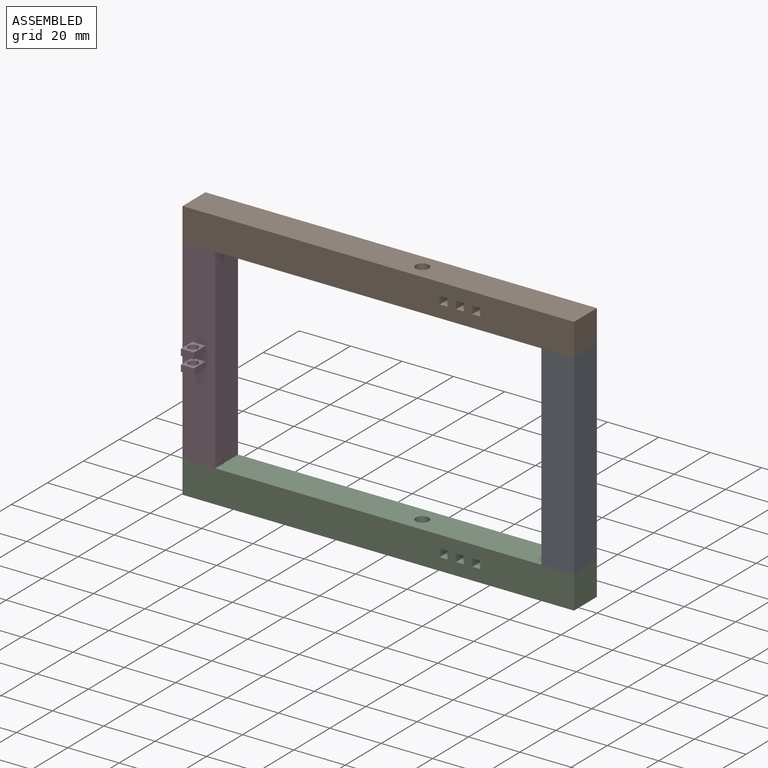
[diagram: assembled view]
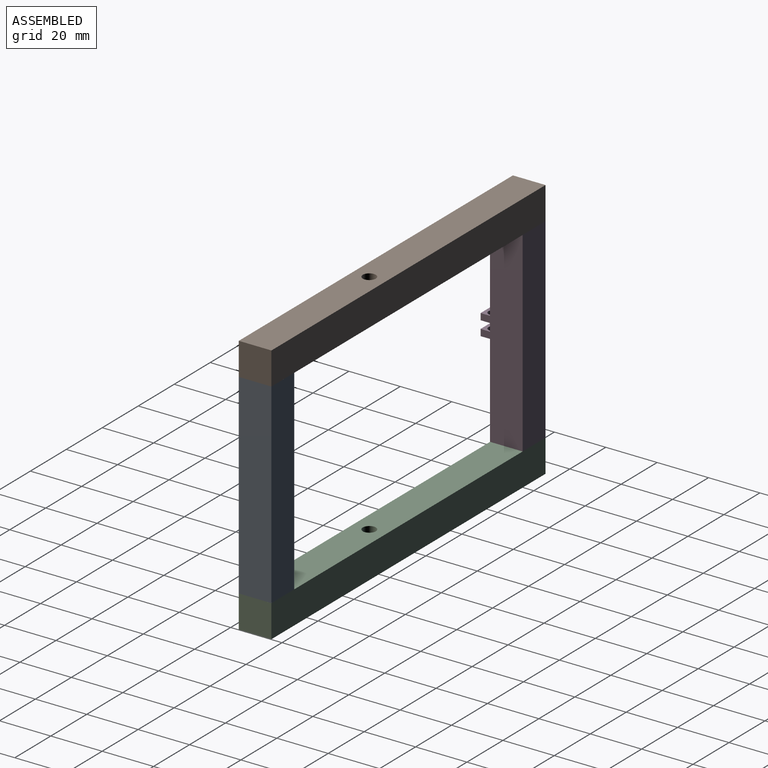
[diagram: assembled view, second angle]
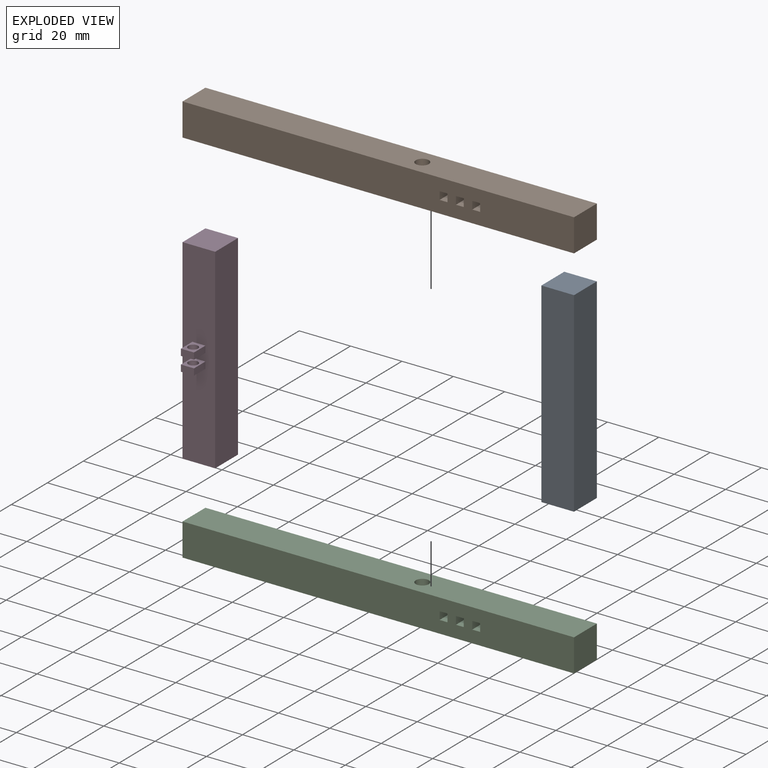
[diagram: exploded view]
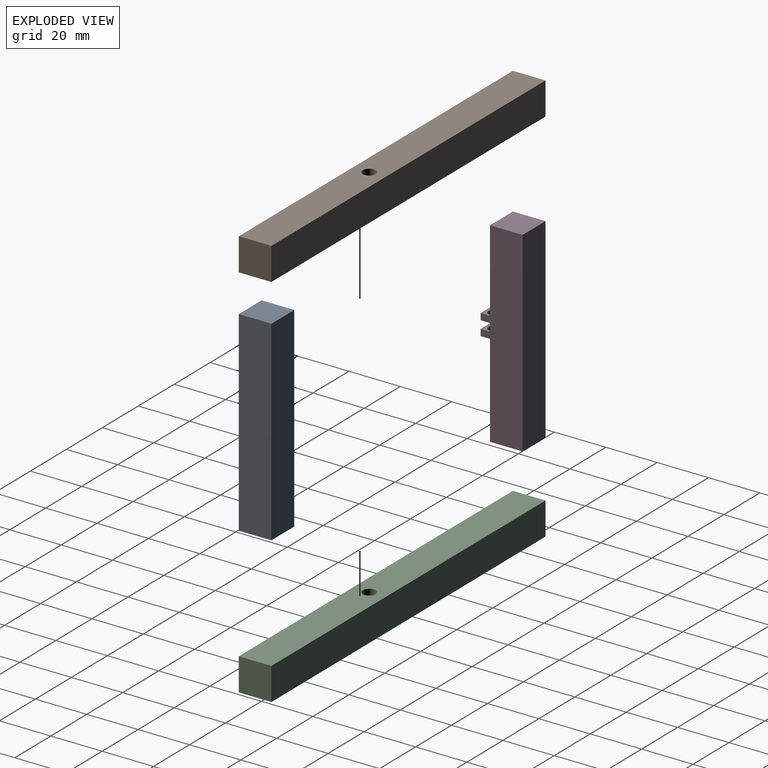
[diagram: exploded view, second angle]
ASSEMBLY  parts=4 mates=3
PART A: 6 faces, bbox 76.2x12.7x12.7 mm
  f0: plane 76.2x12.7mm, normal (0,1,0), area 967.7mm2, adj f1,f3,f4,f5
  f1: plane 12.7x12.7mm, normal (-1,0,0), area 161.3mm2, adj f0,f2,f4,f5
  f2: plane 76.2x12.7mm, normal (0,-1,0), area 967.7mm2, adj f1,f3,f4,f5
  f3: plane 12.7x12.7mm, normal (1,0,0), area 161.3mm2, adj f0,f2,f4,f5
  f4: plane 76.2x12.7mm, normal (0,0,1), area 967.7mm2, adj f0,f1,f2,f3
  f5: plane 76.2x12.7mm, normal (0,0,-1), area 967.7mm2, adj f0,f1,f2,f3
PART B: 22 faces, bbox 152.4x12.7x12.7 mm
  f0: plane 152.4x12.7mm, normal (0,1,0), area 1915.2mm2, adj f1,f3,f4,f5,f6
  f1: plane 12.7x12.7mm, normal (-1,0,0), area 161.3mm2, adj f0,f2,f4,f5
  f2: plane 152.4x12.7mm, normal (0,-1,0), area 1915.2mm2, adj f1,f3,f4,f5,f6
  f3: plane 12.7x12.7mm, normal (1,0,0), area 161.3mm2, adj f0,f2,f4,f5
  f4: plane 152.4x12.7mm, normal (0,0,1), area 1935.5mm2, adj f0,f1,f2,f3
  f5: plane 152.4x12.7mm, normal (0,0,-1), area 1907.6mm2, adj f0,f1,f2,f3,f7,f8,f9,f10
  f6: cylinder r=2.54mm len=12.7mm, axis (0,-1,0), area 202.7mm2, adj f0,f2
  f7: plane 6.48x3.05mm, normal (0,1,0), area 19.7mm2, adj f5,f8,f10,f11
  f8: plane 6.48x3.05mm, normal (-1,0,0), area 19.7mm2, adj f5,f7,f9,f11
  f9: plane 6.48x3.05mm, normal (0,-1,0), area 19.7mm2, adj f5,f8,f10,f11
  f10: plane 6.48x3.05mm, normal (1,0,0), area 19.7mm2, adj f5,f7,f9,f11
  f11: plane 3.05x3.05mm, normal (0,0,-1), area 9.3mm2, adj f7,f8,f9,f10
  f12: plane 6.48x3.05mm, normal (0,1,0), area 19.7mm2, adj f5,f13,f15,f16
  f13: plane 6.48x3.05mm, normal (-1,0,0), area 19.7mm2, adj f5,f12,f14,f16
  f14: plane 6.48x3.05mm, normal (0,-1,0), area 19.7mm2, adj f5,f13,f15,f16
  f15: plane 6.48x3.05mm, normal (1,0,0), area 19.7mm2, adj f5,f12,f14,f16
  f16: plane 3.05x3.05mm, normal (0,0,-1), area 9.3mm2, adj f12,f13,f14,f15
  f17: plane 6.48x3.05mm, normal (0,1,0), area 19.7mm2, adj f5,f18,f20,f21
  f18: plane 6.48x3.05mm, normal (-1,0,0), area 19.7mm2, adj f5,f17,f19,f21
  f19: plane 6.48x3.05mm, normal (0,-1,0), area 19.7mm2, adj f5,f18,f20,f21
  f20: plane 6.48x3.05mm, normal (1,0,0), area 19.7mm2, adj f5,f17,f19,f21
  f21: plane 3.05x3.05mm, normal (0,0,-1), area 9.3mm2, adj f17,f18,f19,f20
PART C: same geometry as B
PART D: 18 faces, bbox 76.2x12.7x19.1 mm
  f0: plane 76.2x12.7mm, normal (0,0,1), area 941.9mm2, adj f1,f2,f3,f4,f6,f7,f8,f9
  f1: plane 76.2x12.7mm, normal (0,-1,0), area 967.7mm2, adj f0,f2,f4,f5
  f2: plane 12.7x12.7mm, normal (1,0,0), area 161.3mm2, adj f0,f1,f3,f5
  f3: plane 76.2x12.7mm, normal (0,1,0), area 967.7mm2, adj f0,f2,f4,f5
  f4: plane 12.7x12.7mm, normal (-1,0,0), area 161.3mm2, adj f0,f1,f3,f5
  f5: plane 76.2x12.7mm, normal (0,0,-1), area 967.7mm2, adj f1,f2,f3,f4
  f6: plane 6.35x5.08mm, normal (1,0,0), area 20.9mm2, adj f0,f7,f9,f10,f17
  f7: plane 6.35x2.54mm, normal (0,1,0), area 16.1mm2, adj f0,f6,f8,f10
  f8: plane 6.35x5.08mm, normal (-1,0,0), area 20.9mm2, adj f0,f7,f9,f10,f17
  f9: plane 6.35x2.54mm, normal (0,-1,0), area 16.1mm2, adj f0,f6,f8,f10
  f10: plane 5.08x2.54mm, normal (0,0,1), area 12.9mm2, adj f6,f7,f8,f9
  f11: plane 6.35x5.08mm, normal (1,0,0), area 20.9mm2, adj f0,f12,f14,f15,f16
  f12: plane 6.35x2.54mm, normal (0,1,0), area 16.1mm2, adj f0,f11,f13,f15
  f13: plane 6.35x5.08mm, normal (-1,0,0), area 20.9mm2, adj f0,f12,f14,f15,f16
  f14: plane 6.35x2.54mm, normal (0,-1,0), area 16.1mm2, adj f0,f11,f13,f15
  f15: plane 5.08x2.54mm, normal (0,0,1), area 12.9mm2, adj f11,f12,f13,f14
  f16: cylinder r=1.91mm len=3.81mm, axis (-1,0,0), area 30.4mm2, adj f11,f13
  f17: cylinder r=1.91mm len=3.81mm, axis (-1,0,0), area 30.4mm2, adj f6,f8
PLACE A rot(axis=(-0.58,-0.58,-0.58),120deg) t=(80.68,-6.35,36.43)mm
PLACE B rot(axis=(0,-0.71,-0.71),180deg) t=(-2.43,-6.35,53.84)mm
PLACE C rot(axis=(0,0.71,0.71),180deg) t=(-2.43,-6.35,-35.06)mm
PLACE D rot(axis=(0.58,-0.58,0.58),120deg) t=(-132.15,6.35,36.02)mm
MATE fastened B.f2 <-> D.f2  axis (0,0,-1) through (-88.9,0,88.9)mm
MATE fastened A.f1 <-> C.f0  axis (0,0,-1) through (63.5,6.35,12.7)mm
MATE fastened D.f4 <-> C.f0  axis (0,0,-1) through (-88.9,0,12.7)mm
